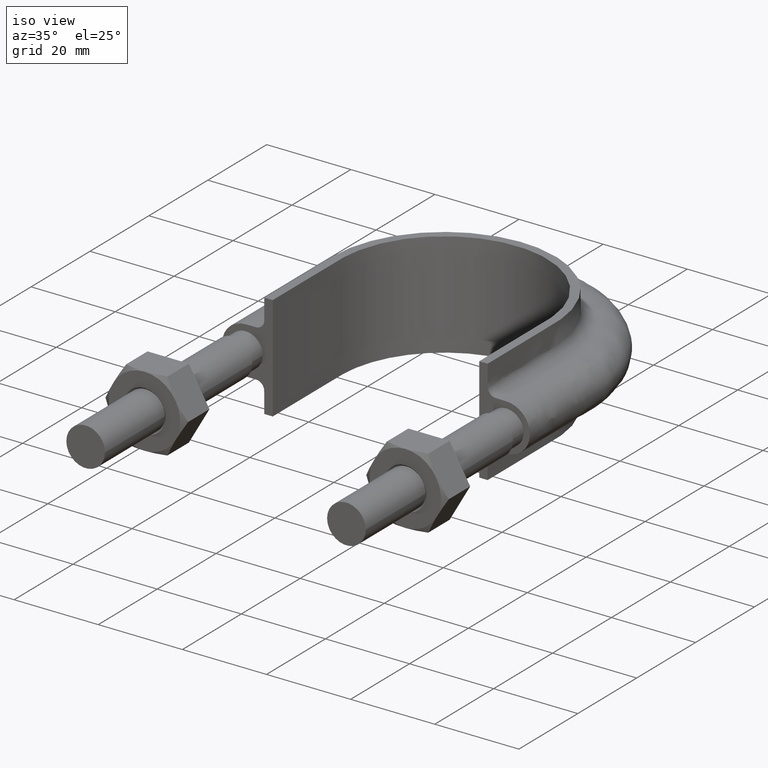
[diagram: clean part render]
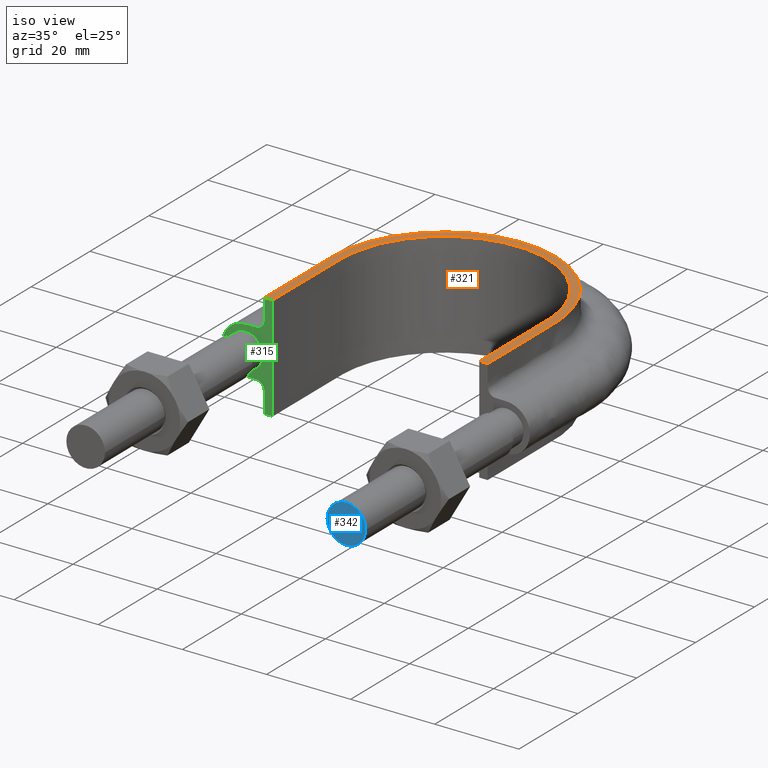
[diagram: same view with three faces highlighted in distinct colors, each labeled with its STEP entity id]
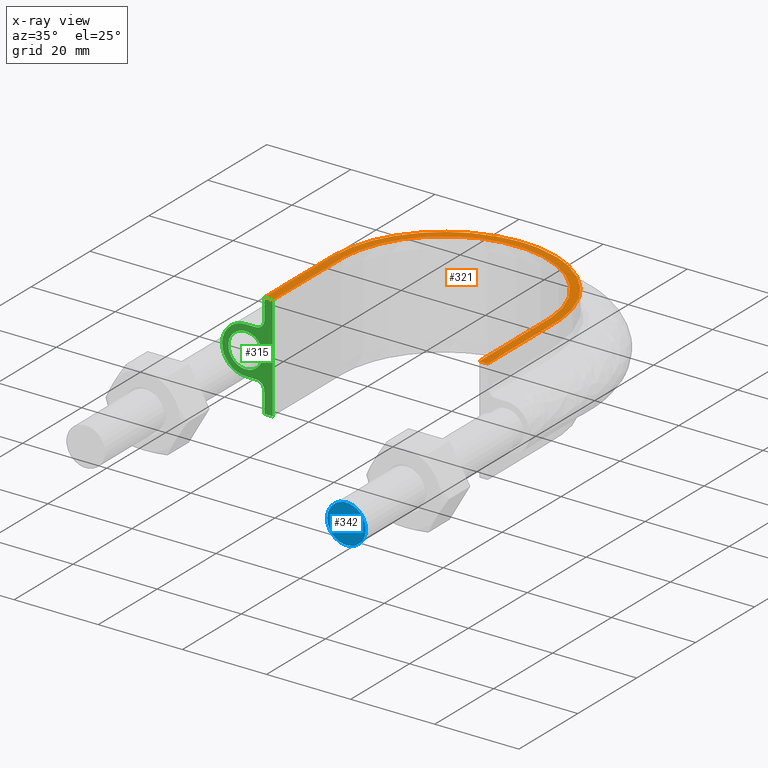
[diagram: x-ray of the same camera — body ghosted, the three highlighted faces saturated]
A machine part, iso view with three faces highlighted in distinct colors.
The next image is the same camera in x-ray (body ghosted, the three faces saturated) — at least one of them is partly hidden behind the body in this view.
Their STEP definitions:

[orange] entity #321 — the highlighted planar face has unit normal (0, 0, 1).
#321 = ADVANCED_FACE( '', ( #409 ), #410, .T. );
#409 = FACE_OUTER_BOUND( '', #1259, .T. );
#410 = PLANE( '', #1260 );
#1259 = EDGE_LOOP( '', ( #1618, #1619, #1620, #1621 ) );
#1260 = AXIS2_PLACEMENT_3D( '', #1622, #1623, #1624 );
#1618 = ORIENTED_EDGE( '', *, *, #2112, .T. );
#1619 = ORIENTED_EDGE( '', *, *, #2124, .F. );
#1620 = ORIENTED_EDGE( '', *, *, #2119, .T. );
#1621 = ORIENTED_EDGE( '', *, *, #2117, .T. );
#1622 = CARTESIAN_POINT( '', ( 40.0000000000000, 124.300000000000, 12.5000000000000 ) );
#1623 = DIRECTION( '', ( 0.000000000000000, 0.000000000000000, 1.00000000000000 ) );
#1624 = DIRECTION( '', ( 1.00000000000000, 0.000000000000000, 0.000000000000000 ) );
#2112 = EDGE_CURVE( '', #2266, #2263, #2267, .F. );
#2117 = EDGE_CURVE( '', #2275, #2266, #2276, .F. );
#2119 = EDGE_CURVE( '', #2278, #2275, #2279, .F. );
#2124 = EDGE_CURVE( '', #2278, #2263, #2286, .T. );
#2263 = VERTEX_POINT( '', #2513 );
#2266 = VERTEX_POINT( '', #2517 );
#2267 = LINE( '', #2518, #2519 );
#2275 = VERTEX_POINT( '', #2583 );
#2276 = B_SPLINE_CURVE_WITH_KNOTS( '', 3, ( #2584, #2585, #2586, #2587, #2588, #2589, #2590, #2591, #2592, #2593, #2594, #2595, #2596, #2597, #2598, #2599, #2600 ), .UNSPECIFIED., .F., .F., ( 4, 3, 1, 1, 1, 1, 1, 1, 1, 3, 4 ), ( 0.145756457564577, 1.00000000000000, 1.50000000000000, 2.00000000000000, 3.00000000000000, 4.00000000000000, 5.00000000000000, 6.00000000000000, 6.50000000000000, 7.00000000000000, 7.85424354243542 ), .UNSPECIFIED. );
#2278 = VERTEX_POINT( '', #2632 );
#2279 = LINE( '', #2633, #2634 );
#2286 = B_SPLINE_CURVE_WITH_KNOTS( '', 3, ( #2668, #2669, #2670, #2671, #2672, #2673, #2674, #2675, #2676, #2677, #2678, #2679, #2680, #2681, #2682, #2683, #2684, #2685, #2686, #2687, #2688, #2689, #2690, #2691, #2692, #2693, #2694, #2695, #2696, #2697, #2698, #2699, #2700, #2701, #2702, #2703, #2704, #2705, #2706, #2707, #2708, #2709, #2710, #2711, #2712, #2713, #2714, #2715, #2716, #2717, #2718, #2719, #2720, #2721, #2722, #2723, #2724, #2725, #2726, #2727, #2728, #2729, #2730, #2731, #2732, #2733, #2734 ), .UNSPECIFIED., .F., .F., ( 4, 1, 2, 2, 2, 2, 2, 2, 2, 2, 2, 2, 2, 2, 2, 2, 2, 2, 2, 2, 2, 2, 2, 2, 2, 2, 2, 2, 2, 2, 2, 2, 1, 1, 4 ), ( 0.000000000000000, 0.0154145326467006, 0.0231217989700509, 0.0250486155508884, 0.0269754321317260, 0.0308290652934012, 0.0346826984550764, 0.0366095150359140, 0.0385363316167516, 0.0423899647784267, 0.0443167813592643, 0.0462435979401019, 0.0500972311017770, 0.0520240476826146, 0.0539508642634522, 0.0578044974251273, 0.0597313140059648, 0.0616581305868024, 0.0655117637484775, 0.0674385803293151, 0.0693653969101526, 0.0732190300718278, 0.0751458466526653, 0.0770726632335028, 0.0809262963951779, 0.0828531129760155, 0.0847799295568531, 0.0924871958802032, 0.0944140124610407, 0.0963408290418783, 0.100194462203553, 0.102121278784391, 0.104048095365228, 0.107901728526904, 0.123316261173604 ), .UNSPECIFIED. );
#2513 = CARTESIAN_POINT( '', ( -24.5500000000000, 54.3000000000000, 12.5000000000000 ) );
#2517 = CARTESIAN_POINT( '', ( -26.5500000000000, 54.3000000000000, 12.5000000000000 ) );
#2518 = CARTESIAN_POINT( '', ( 40.0000000000000, 54.3000000000000, 12.5000000000000 ) );
#2519 = VECTOR( '', #3160, 1000.00000000000 );
#2583 = CARTESIAN_POINT( '', ( 26.5500000000000, 54.3000000000000, 12.5000000000000 ) );
#2584 = CARTESIAN_POINT( '', ( -26.5500000000000, 54.3000000000000, 12.5000000000000 ) );
#2585 = CARTESIAN_POINT( '', ( -26.5500000000000, 62.0166666666667, 12.5000000000000 ) );
#2586 = CARTESIAN_POINT( '', ( -26.5500000000000, 69.7333333333334, 12.5000000000000 ) );
#2587 = CARTESIAN_POINT( '', ( -26.5500000000000, 77.4500000000000, 12.5000000000000 ) );
#2588 = CARTESIAN_POINT( '', ( -26.5500000000000, 79.7566352991258, 12.5000000000000 ) );
#2589 = CARTESIAN_POINT( '', ( -25.9278217826460, 84.4015410955847, 12.5000000000000 ) );
#2590 = CARTESIAN_POINT( '', ( -22.3733615438456, 93.0387447403505, 12.5000000000000 ) );
#2591 = CARTESIAN_POINT( '', ( -13.8952542493119, 101.518591858921, 12.5000000000000 ) );
#2592 = CARTESIAN_POINT( '', ( 2.02604182614537E-014, 105.240704070539, 12.5000000000000 ) );
#2593 = CARTESIAN_POINT( '', ( 13.8952542493119, 101.518591858921, 12.5000000000000 ) );
#2594 = CARTESIAN_POINT( '', ( 22.3733615438457, 93.0387447403505, 12.5000000000000 ) );
#2595 = CARTESIAN_POINT( '', ( 25.9278217826460, 84.4015410955847, 12.5000000000000 ) );
#2596 = CARTESIAN_POINT( '', ( 26.5500000000000, 79.7566352991258, 12.5000000000000 ) );
#2597 = CARTESIAN_POINT( '', ( 26.5500000000000, 77.4500000000000, 12.5000000000000 ) );
#2598 = CARTESIAN_POINT( '', ( 26.5500000000000, 69.7333333333334, 12.5000000000000 ) );
#2599 = CARTESIAN_POINT( '', ( 26.5500000000000, 62.0166666666667, 12.5000000000000 ) );
#2600 = CARTESIAN_POINT( '', ( 26.5500000000000, 54.3000000000000, 12.5000000000000 ) );
#2632 = CARTESIAN_POINT( '', ( 24.5500000000000, 54.3000000000000, 12.5000000000000 ) );
#2633 = CARTESIAN_POINT( '', ( 40.0000000000000, 54.3000000000000, 12.5000000000000 ) );
#2634 = VECTOR( '', #3162, 1000.00000000000 );
#2668 = CARTESIAN_POINT( '', ( 24.5500000000000, 54.3000000000000, 12.5000000000000 ) );
#2669 = CARTESIAN_POINT( '', ( 24.5500000000000, 59.4384221999800, 12.5000000000000 ) );
#2670 = CARTESIAN_POINT( '', ( 24.5500000000000, 67.1460554999500, 12.5000000000000 ) );
#2671 = CARTESIAN_POINT( '', ( 24.5500000000000, 74.8536887999200, 12.5000000000000 ) );
#2672 = CARTESIAN_POINT( '', ( 24.5500000000000, 78.0652026749075, 12.5000000000000 ) );
#2673 = CARTESIAN_POINT( '', ( 24.5252751330927, 78.7072641688935, 12.5000000000000 ) );
#2674 = CARTESIAN_POINT( '', ( 24.4234462537603, 79.9908760077759, 12.5000000000000 ) );
#2675 = CARTESIAN_POINT( '', ( 24.3467657946690, 80.6342202589337, 12.5000000000000 ) );
#2676 = CARTESIAN_POINT( '', ( 24.0418819320212, 82.5512040485106, 12.5000000000000 ) );
#2677 = CARTESIAN_POINT( '', ( 23.7423938741594, 83.7980756143652, 12.5000000000000 ) );
#2678 = CARTESIAN_POINT( '', ( 22.9567434107525, 86.2314557302550, 12.5000000000000 ) );
#2679 = CARTESIAN_POINT( '', ( 22.4705596365818, 87.4179573705317, 12.5000000000000 ) );
#2680 = CARTESIAN_POINT( '', ( 21.5925627875953, 89.1496193486760, 12.5000000000000 ) );
#2681 = CARTESIAN_POINT( '', ( 21.2766071075014, 89.7149736051726, 12.5000000000000 ) );
#2682 = CARTESIAN_POINT( '', ( 20.6053719022684, 90.8105348664258, 12.5000000000000 ) );
#2683 = CARTESIAN_POINT( '', ( 20.2492833691970, 91.3426982596921, 12.5000000000000 ) );
#2684 = CARTESIAN_POINT( '', ( 19.1215068537777, 92.8937876646727, 12.5000000000000 ) );
#2685 = CARTESIAN_POINT( '', ( 18.2907926568853, 93.8676826796255, 12.5000000000000 ) );
#2686 = CARTESIAN_POINT( '', ( 16.9250762587395, 95.2372481605127, 12.5000000000000 ) );
#2687 = CARTESIAN_POINT( '', ( 16.4483141734126, 95.6794580763296, 12.5000000000000 ) );
#2688 = CARTESIAN_POINT( '', ( 15.4703087185620, 96.5179842065183, 12.5000000000000 ) );
#2689 = CARTESIAN_POINT( '', ( 14.9674075928234, 96.9161548866917, 12.5000000000000 ) );
#2690 = CARTESIAN_POINT( '', ( 13.4174319314452, 98.0480315871902, 12.5000000000000 ) );
#2691 = CARTESIAN_POINT( '', ( 12.3291014903936, 98.7191271240917, 12.5000000000000 ) );
#2692 = CARTESIAN_POINT( '', ( 10.6113550739498, 99.5963928065052, 12.5000000000000 ) );
#2693 = CARTESIAN_POINT( '', ( 10.0221200459752, 99.8683847934330, 12.5000000000000 ) );
#2694 = CARTESIAN_POINT( '', ( 8.82789979738709, 100.363314078471, 12.5000000000000 ) );
#2695 = CARTESIAN_POINT( '', ( 8.22453257139356, 100.585861709962, 12.5000000000000 ) );
#2696 = CARTESIAN_POINT( '', ( 6.39627757875420, 101.181214530966, 12.5000000000000 ) );
#2697 = CARTESIAN_POINT( '', ( 5.15338195845829, 101.482308901390, 12.5000000000000 ) );
#2698 = CARTESIAN_POINT( '', ( 3.25266287101839, 101.789095428283, 12.5000000000000 ) );
#2699 = CARTESIAN_POINT( '', ( 2.61299113566843, 101.867071354940, 12.5000000000000 ) );
#2700 = CARTESIAN_POINT( '', ( 1.32093241036630, 101.972388560719, 12.5000000000000 ) );
#2701 = CARTESIAN_POINT( '', ( 0.676406080425034, 101.999046675169, 12.5000000000000 ) );
#2702 = CARTESIAN_POINT( '', ( -1.24870371014289, 102.001831348721, 12.5000000000000 ) );
#2703 = CARTESIAN_POINT( '', ( -2.52265182528387, 101.901467818298, 12.5000000000000 ) );
#2704 = CARTESIAN_POINT( '', ( -4.41989760294861, 101.603117496314, 12.5000000000000 ) );
#2705 = CARTESIAN_POINT( '', ( -5.05001948103531, 101.478882110562, 12.5000000000000 ) );
#2706 = CARTESIAN_POINT( '', ( -6.30559148152663, 101.179922232146, 12.5000000000000 ) );
#2707 = CARTESIAN_POINT( '', ( -6.93138081059488, 101.004801946248, 12.5000000000000 ) );
#2708 = CARTESIAN_POINT( '', ( -8.76889753233642, 100.412561446254, 12.5000000000000 ) );
#2709 = CARTESIAN_POINT( '', ( -9.95225725658831, 99.9267801345634, 12.5000000000000 ) );
#2710 = CARTESIAN_POINT( '', ( -11.6646188489648, 99.0612380840055, 12.5000000000000 ) );
#2711 = CARTESIAN_POINT( '', ( -12.2248697137769, 98.7497158527538, 12.5000000000000 ) );
#2712 = CARTESIAN_POINT( '', ( -13.3236776153922, 98.0792985269674, 12.5000000000000 ) );
#2713 = CARTESIAN_POINT( '', ( -13.8646027205756, 97.7187643121761, 12.5000000000000 ) );
#2714 = CARTESIAN_POINT( '', ( -15.4323331862349, 96.5816103428784, 12.5000000000000 ) );
#2715 = CARTESIAN_POINT( '', ( -16.4066904175185, 95.7499313198934, 12.5000000000000 ) );
#2716 = CARTESIAN_POINT( '', ( -17.7664797273136, 94.3966709647585, 12.5000000000000 ) );
#2717 = CARTESIAN_POINT( '', ( -18.2026751411942, 93.9278462929921, 12.5000000000000 ) );
#2718 = CARTESIAN_POINT( '', ( -19.0403725195660, 92.9541411916242, 12.5000000000000 ) );
#2719 = CARTESIAN_POINT( '', ( -19.4425779981799, 92.4483024401625, 12.5000000000000 ) );
#2720 = CARTESIAN_POINT( '', ( -21.3557319354796, 89.8353834350350, 12.5000000000000 ) );
#2721 = CARTESIAN_POINT( '', ( -22.5176023500941, 87.5595033352519, 12.5000000000000 ) );
#2722 = CARTESIAN_POINT( '', ( -23.5216696114527, 84.4890361381941, 12.5000000000000 ) );
#2723 = CARTESIAN_POINT( '', ( -23.6990122608683, 83.8647462965356, 12.5000000000000 ) );
#2724 = CARTESIAN_POINT( '', ( -24.0024245935730, 82.6147239867793, 12.5000000000000 ) );
#2725 = CARTESIAN_POINT( '', ( -24.1294131227665, 81.9864283058244, 12.5000000000000 ) );
#2726 = CARTESIAN_POINT( '', ( -24.4371992964721, 80.0918170449202, 12.5000000000000 ) );
#2727 = CARTESIAN_POINT( '', ( -24.5457173567177, 78.8158968179808, 12.5000000000000 ) );
#2728 = CARTESIAN_POINT( '', ( -24.5519571685428, 76.8812155098234, 12.5000000000000 ) );
#2729 = CARTESIAN_POINT( '', ( -24.5500000000000, 76.2357852822297, 12.5000000000000 ) );
#2730 = CARTESIAN_POINT( '', ( -24.5500000000000, 74.9454449715102, 12.5000000000000 ) );
#2731 = CARTESIAN_POINT( '', ( -24.5500000000000, 73.0099345054311, 12.5000000000000 ) );
#2732 = CARTESIAN_POINT( '', ( -24.5500000000000, 65.9130627964745, 12.5000000000000 ) );
#2733 = CARTESIAN_POINT( '', ( -24.5500000000000, 59.4613612428776, 12.5000000000000 ) );
#2734 = CARTESIAN_POINT( '', ( -24.5500000000000, 54.3000000000000, 12.5000000000000 ) );
#3160 = DIRECTION( '', ( -1.00000000000000, 2.75411799042744E-080, 0.000000000000000 ) );
#3162 = DIRECTION( '', ( -1.00000000000000, 2.75411799042744E-080, 0.000000000000000 ) );

[blue] entity #342 — the highlighted planar face has unit normal (-0, -1, -0).
#342 = ADVANCED_FACE( '', ( #455 ), #456, .T. );
#455 = FACE_OUTER_BOUND( '', #1454, .T. );
#456 = PLANE( '', #1455 );
#1454 = EDGE_LOOP( '', ( #1744 ) );
#1455 = AXIS2_PLACEMENT_3D( '', #1745, #1746, #1747 );
#1744 = ORIENTED_EDGE( '', *, *, #2156, .T. );
#1745 = CARTESIAN_POINT( '', ( 31.0000000000000, -7.59255939369874E-015, 1.98998532496135E-016 ) );
#1746 = DIRECTION( '', ( -2.44921270764475E-016, -1.00000000000000, -3.06151588455594E-016 ) );
#1747 = DIRECTION( '', ( 0.000000000000000, 3.06151588455594E-016, -1.00000000000000 ) );
#2156 = EDGE_CURVE( '', #2335, #2335, #2336, .T. );
#2335 = VERTEX_POINT( '', #2825 );
#2336 = CIRCLE( '', #2826, 4.60000000000000 );
#2825 = CARTESIAN_POINT( '', ( 35.6000000000000, -8.71919723921533E-015, 1.98998532496135E-016 ) );
#2826 = AXIS2_PLACEMENT_3D( '', #3216, #3217, #3218 );
#3216 = CARTESIAN_POINT( '', ( 31.0000000000000, -7.59255939369874E-015, 1.98998532496135E-016 ) );
#3217 = DIRECTION( '', ( -2.44921270764475E-016, -1.00000000000000, -3.06151588455594E-016 ) );
#3218 = DIRECTION( '', ( 1.00000000000000, -2.44921270764475E-016, -3.74915180455534E-032 ) );

[green] entity #315 — the highlighted planar face has unit normal (0, 1, 0).
#315 = ADVANCED_FACE( '', ( #394, #395 ), #396, .F. );
#394 = FACE_OUTER_BOUND( '', #568, .T. );
#395 = FACE_BOUND( '', #569, .T. );
#396 = PLANE( '', #570 );
#568 = EDGE_LOOP( '', ( #1567, #1568, #1569, #1570 ) );
#569 = EDGE_LOOP( '', ( #1571 ) );
#570 = AXIS2_PLACEMENT_3D( '', #1572, #1573, #1574 );
#1567 = ORIENTED_EDGE( '', *, *, #2111, .F. );
#1568 = ORIENTED_EDGE( '', *, *, #2112, .F. );
#1569 = ORIENTED_EDGE( '', *, *, #2113, .T. );
#1570 = ORIENTED_EDGE( '', *, *, #2114, .T. );
#1571 = ORIENTED_EDGE( '', *, *, #2115, .T. );
#1572 = CARTESIAN_POINT( '', ( -40.0000000000000, 54.3000000000000, 12.5000000000000 ) );
#1573 = DIRECTION( '', ( 2.75411799042744E-080, 1.00000000000000, 1.49966072182214E-032 ) );
#1574 = DIRECTION( '', ( 1.00000000000000, -3.74534108375376E-096, -1.83649404852125E-048 ) );
#2111 = EDGE_CURVE( '', #2263, #2264, #2265, .T. );
#2112 = EDGE_CURVE( '', #2266, #2263, #2267, .F. );
#2113 = EDGE_CURVE( '', #2266, #2268, #2269, .T. );
#2114 = EDGE_CURVE( '', #2268, #2264, #2270, .T. );
#2115 = EDGE_CURVE( '', #2271, #2271, #2272, .T. );
#2263 = VERTEX_POINT( '', #2513 );
#2264 = VERTEX_POINT( '', #2514 );
#2265 = LINE( '', #2515, #2516 );
#2266 = VERTEX_POINT( '', #2517 );
#2267 = LINE( '', #2518, #2519 );
#2268 = VERTEX_POINT( '', #2520 );
#2269 = B_SPLINE_CURVE_WITH_KNOTS( '', 3, ( #2521, #2522, #2523, #2524, #2525, #2526, #2527, #2528, #2529, #2530, #2531, #2532, #2533, #2534, #2535, #2536, #2537, #2538, #2539, #2540, #2541, #2542, #2543, #2544, #2545, #2546, #2547, #2548, #2549, #2550, #2551 ), .UNSPECIFIED., .F., .F., ( 4, 3, 1, 1, 1, 3, 3, 1, 1, 1, 3, 3, 1, 1, 1, 3, 4 ), ( 0.000000000000000, 0.00240476149769663, 0.00480952299539328, 0.00721428449308990, 0.00961904599078656, 0.0120238074884832, 0.0144285689861798, 0.0168333304838765, 0.0192380919815731, 0.0216428534792697, 0.0240476149769663, 0.0264523764746630, 0.0288571379723596, 0.0312618994700562, 0.0336666609677529, 0.0360714224654495, 0.0384761839631462 ), .UNSPECIFIED. );
#2270 = LINE( '', #2552, #2553 );
#2271 = VERTEX_POINT( '', #2554 );
#2272 = B_SPLINE_CURVE_WITH_KNOTS( '', 3, ( #2555, #2556, #2557, #2558, #2559, #2560, #2561, #2562, #2563, #2564 ), .UNSPECIFIED., .T., .F., ( 4, 1, 1, 1, 1, 1, 1, 4 ), ( 0.000000000000000, 0.00365634574703307, 0.00731269149406613, 0.0109690372410992, 0.0146253829881322, 0.0182817287351653, 0.0219380744821984, 0.0255944202292314 ), .UNSPECIFIED. );
#2513 = CARTESIAN_POINT( '', ( -24.5500000000000, 54.3000000000000, 12.5000000000000 ) );
#2514 = CARTESIAN_POINT( '', ( -24.5500000000000, 54.3000000000000, -12.5000000000000 ) );
#2515 = CARTESIAN_POINT( '', ( -24.5500000000000, 54.3000000000000, 12.5000100000910 ) );
#2516 = VECTOR( '', #3159, 1000.00000000000 );
#2517 = CARTESIAN_POINT( '', ( -26.5500000000000, 54.3000000000000, 12.5000000000000 ) );
#2518 = CARTESIAN_POINT( '', ( 40.0000000000000, 54.3000000000000, 12.5000000000000 ) );
#2519 = VECTOR( '', #3160, 1000.00000000000 );
#2520 = CARTESIAN_POINT( '', ( -26.5500000000000, 54.3000000000000, -12.5000000000000 ) );
#2521 = CARTESIAN_POINT( '', ( -26.5500000000000, 54.3000000000000, 12.5000000000000 ) );
#2522 = CARTESIAN_POINT( '', ( -26.5500000000000, 54.3000000000000, 10.8666666666667 ) );
#2523 = CARTESIAN_POINT( '', ( -26.5500000000000, 54.3000000000000, 9.23333333333333 ) );
#2524 = CARTESIAN_POINT( '', ( -26.5500000000000, 54.3000000000000, 7.59999999999999 ) );
#2525 = CARTESIAN_POINT( '', ( -26.5500000000000, 54.3000000000000, 7.33823584172332 ) );
#2526 = CARTESIAN_POINT( '', ( -26.6541362568359, 54.3000000000000, 6.81470752517000 ) );
#2527 = CARTESIAN_POINT( '', ( -27.0989687109389, 54.3000000000000, 6.14896871093887 ) );
#2528 = CARTESIAN_POINT( '', ( -27.7647075251700, 54.3000000000000, 5.70413625683590 ) );
#2529 = CARTESIAN_POINT( '', ( -28.2882358417233, 54.3000000000000, 5.59999999999999 ) );
#2530 = CARTESIAN_POINT( '', ( -28.5500000000000, 54.3000000000000, 5.59999999999999 ) );
#2531 = CARTESIAN_POINT( '', ( -29.3666666666667, 54.3000000000000, 5.60000000000001 ) );
#2532 = CARTESIAN_POINT( '', ( -30.1833333333333, 54.3000000000000, 5.60000000000001 ) );
#2533 = CARTESIAN_POINT( '', ( -31.0000000000000, 54.3000000000000, 5.60000000000001 ) );
#2534 = CARTESIAN_POINT( '', ( -32.4627416997969, 54.3000000000000, 5.60000000000001 ) );
#2535 = CARTESIAN_POINT( '', ( -35.3882250993908, 54.3000000000000, 4.38822509939087 ) );
#2536 = CARTESIAN_POINT( '', ( -37.2058874503046, 54.3000000000000, 9.94452457394278E-015 ) );
#2537 = CARTESIAN_POINT( '', ( -35.3882250993908, 54.3000000000000, -4.38822509939085 ) );
#2538 = CARTESIAN_POINT( '', ( -32.4627416997969, 54.3000000000000, -5.59999999999999 ) );
#2539 = CARTESIAN_POINT( '', ( -31.0000000000000, 54.3000000000000, -5.59999999999999 ) );
#2540 = CARTESIAN_POINT( '', ( -30.1833333333333, 54.3000000000000, -5.59999999999999 ) );
#2541 = CARTESIAN_POINT( '', ( -29.3666666666667, 54.3000000000000, -5.59999999999999 ) );
#2542 = CARTESIAN_POINT( '', ( -28.5500000000000, 54.3000000000000, -5.59999999999999 ) );
#2543 = CARTESIAN_POINT( '', ( -28.2882358417233, 54.3000000000000, -5.59999999999999 ) );
#2544 = CARTESIAN_POINT( '', ( -27.7647075251700, 54.3000000000000, -5.70413625683589 ) );
#2545 = CARTESIAN_POINT( '', ( -27.0989687109389, 54.3000000000000, -6.14896871093886 ) );
#2546 = CARTESIAN_POINT( '', ( -26.6541362568359, 54.3000000000000, -6.81470752516999 ) );
#2547 = CARTESIAN_POINT( '', ( -26.5500000000000, 54.3000000000000, -7.33823584172332 ) );
#2548 = CARTESIAN_POINT( '', ( -26.5500000000000, 54.3000000000000, -7.59999999999998 ) );
#2549 = CARTESIAN_POINT( '', ( -26.5500000000000, 54.3000000000000, -9.23333333333331 ) );
#2550 = CARTESIAN_POINT( '', ( -26.5500000000000, 54.3000000000000, -10.8666666666666 ) );
#2551 = CARTESIAN_POINT( '', ( -26.5500000000000, 54.3000000000000, -12.5000000000000 ) );
#2552 = CARTESIAN_POINT( '', ( -40.0000000000000, 54.3000000000000, -12.5000000000000 ) );
#2553 = VECTOR( '', #3161, 1000.00000000000 );
#2554 = CARTESIAN_POINT( '', ( -26.9000000000000, 54.3000000000000, 1.62630325872826E-016 ) );
#2555 = CARTESIAN_POINT( '', ( -26.9000000000000, 54.3000000000000, 0.000000000000000 ) );
#2556 = CARTESIAN_POINT( '', ( -26.9000000000000, 54.3000000000000, -1.22184926194408 ) );
#2557 = CARTESIAN_POINT( '', ( -28.0768231851220, 54.3000000000000, -3.66554778583225 ) );
#2558 = CARTESIAN_POINT( '', ( -32.0432697263483, 54.3000000000000, -4.57086332538454 ) );
#2559 = CARTESIAN_POINT( '', ( -35.2241128848102, 54.3000000000000, -2.03422555230246 ) );
#2560 = CARTESIAN_POINT( '', ( -35.2241128848102, 54.3000000000000, 2.03422555230246 ) );
#2561 = CARTESIAN_POINT( '', ( -32.0432697263483, 54.3000000000000, 4.57086332538453 ) );
#2562 = CARTESIAN_POINT( '', ( -28.0768231851220, 54.3000000000000, 3.66554778583225 ) );
#2563 = CARTESIAN_POINT( '', ( -26.9000000000000, 54.3000000000000, 1.22184926194408 ) );
#2564 = CARTESIAN_POINT( '', ( -26.9000000000000, 54.3000000000000, 0.000000000000000 ) );
#3159 = DIRECTION( '', ( 0.000000000000000, 0.000000000000000, -1.00000000000000 ) );
#3160 = DIRECTION( '', ( -1.00000000000000, 2.75411799042744E-080, 0.000000000000000 ) );
#3161 = DIRECTION( '', ( 1.00000000000000, -2.75411799042744E-080, 0.000000000000000 ) );